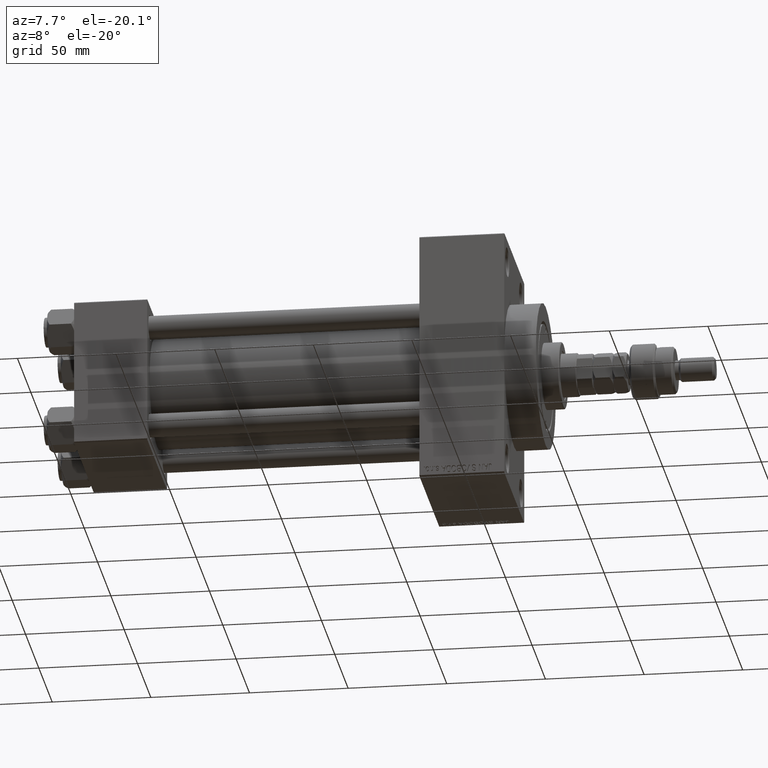
[diagram: clean part render]
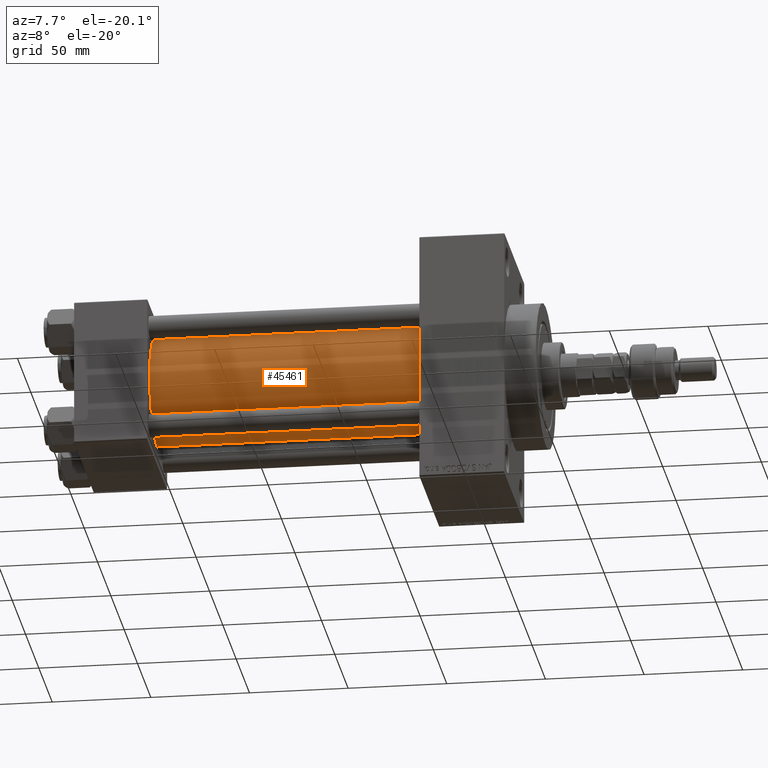
[diagram: same view with one face highlighted and labeled with its STEP entity id]
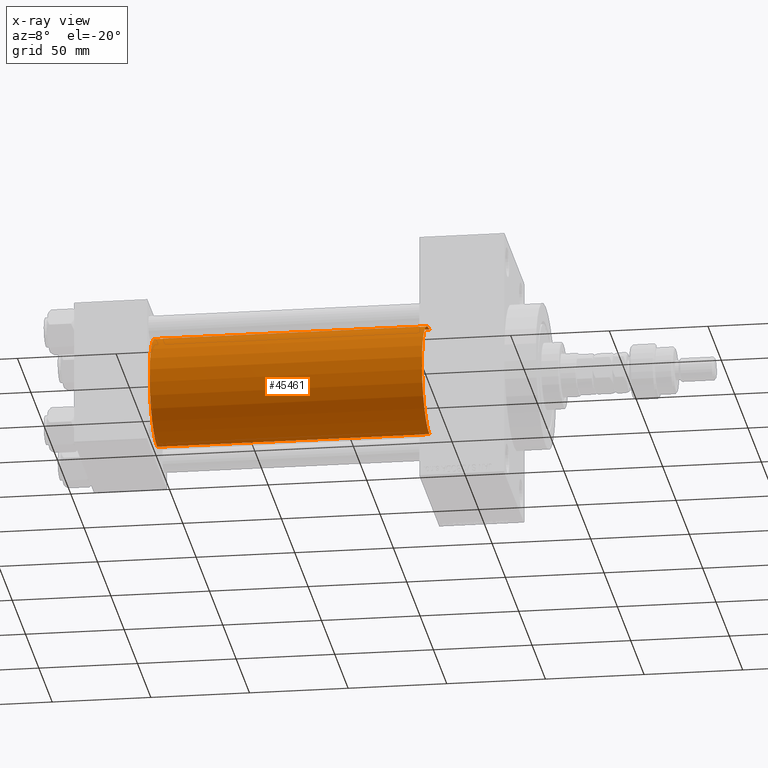
[diagram: x-ray of the same camera — body ghosted, the highlighted face saturated]
A machine part, auxiliary view. The second image highlights one B-rep face of the part: STEP entity #45461.
The next image is the same camera in x-ray: the body ghosted, the highlighted face saturated — about 0% of this face is hidden behind the body in this view.
In plain terms, the highlighted cylindrical surface (partial cylindrical patch) has radius 28 mm, axis along (-1, -0, -0).
Its self-contained STEP definition (entity closure, byte-faithful):
#3620 = EDGE_CURVE ( 'NONE', #38988, #20467, #13954, .T. ) ;
#5522 = FACE_OUTER_BOUND ( 'NONE', #22451, .T. ) ;
#7160 = ORIENTED_EDGE ( 'NONE', *, *, #31096, .F. ) ;
#10127 = VERTEX_POINT ( 'NONE', #47302 ) ;
#11526 = AXIS2_PLACEMENT_3D ( 'NONE', #35578, #39389, #42932 ) ;
#13209 = ORIENTED_EDGE ( 'NONE', *, *, #46237, .T. ) ;
#13612 = VECTOR ( 'NONE', #40563, 1000.000000000000000 ) ;
#13954 = CIRCLE ( 'NONE', #11526, 28.00000000000000000 ) ;
#15992 = DIRECTION ( 'NONE',  ( -1.000000000000000000, -0.000000000000000000, -0.000000000000000000 ) ) ;
#16993 = CYLINDRICAL_SURFACE ( 'NONE', #38135, 28.00000000000000000 ) ;
#17241 = CARTESIAN_POINT ( 'NONE',  ( 175.0000000000000284, -2.602085213965210642E-15, 0.000000000000000000 ) ) ;
#20467 = VERTEX_POINT ( 'NONE', #47346 ) ;
#21052 = DIRECTION ( 'NONE',  ( -1.000000000000000000, -0.000000000000000000, -0.000000000000000000 ) ) ;
#22451 = EDGE_LOOP ( 'NONE', ( #34507, #7160, #13209, #22900 ) ) ;
#22452 = AXIS2_PLACEMENT_3D ( 'NONE', #34527, #37843, #33770 ) ;
#22900 = ORIENTED_EDGE ( 'NONE', *, *, #3620, .T. ) ;
#24697 = EDGE_CURVE ( 'NONE', #43783, #20467, #31971, .T. ) ;
#24859 = CARTESIAN_POINT ( 'NONE',  ( 175.0000000000000284, -2.602085213965210642E-15, 28.00000000000000000 ) ) ;
#24862 = DIRECTION ( 'NONE',  ( 0.000000000000000000, 0.000000000000000000, 1.000000000000000000 ) ) ;
#31096 = EDGE_CURVE ( 'NONE', #10127, #43783, #43509, .T. ) ;
#31971 = LINE ( 'NONE', #40069, #39245 ) ;
#33770 = DIRECTION ( 'NONE',  ( 0.000000000000000000, 0.000000000000000000, -1.000000000000000000 ) ) ;
#34507 = ORIENTED_EDGE ( 'NONE', *, *, #24697, .F. ) ;
#34527 = CARTESIAN_POINT ( 'NONE',  ( 175.0000000000000284, -2.602085213965210642E-15, 0.000000000000000000 ) ) ;
#35578 = CARTESIAN_POINT ( 'NONE',  ( 37.00000000000000711, -2.602085213965210642E-15, 0.000000000000000000 ) ) ;
#37843 = DIRECTION ( 'NONE',  ( 1.000000000000000000, 0.000000000000000000, 0.000000000000000000 ) ) ;
#38135 = AXIS2_PLACEMENT_3D ( 'NONE', #17241, #21052, #24862 ) ;
#38988 = VERTEX_POINT ( 'NONE', #43758 ) ;
#39245 = VECTOR ( 'NONE', #15992, 1000.000000000000000 ) ;
#39389 = DIRECTION ( 'NONE',  ( 1.000000000000000000, -0.000000000000000000, 0.000000000000000000 ) ) ;
#40069 = CARTESIAN_POINT ( 'NONE',  ( 175.0000000000000284, 8.269258236473784371E-16, -28.00000000000000000 ) ) ;
#40316 = LINE ( 'NONE', #24859, #13612 ) ;
#40563 = DIRECTION ( 'NONE',  ( -1.000000000000000000, -0.000000000000000000, -0.000000000000000000 ) ) ;
#42319 = CARTESIAN_POINT ( 'NONE',  ( 175.0000000000000284, 8.269258236473784371E-16, -28.00000000000000000 ) ) ;
#42932 = DIRECTION ( 'NONE',  ( 0.000000000000000000, 0.000000000000000000, 1.000000000000000000 ) ) ;
#43509 = CIRCLE ( 'NONE', #22452, 28.00000000000000000 ) ;
#43758 = CARTESIAN_POINT ( 'NONE',  ( 37.00000000000000711, -2.602085213965210642E-15, 28.00000000000000000 ) ) ;
#43783 = VERTEX_POINT ( 'NONE', #42319 ) ;
#45461 = ADVANCED_FACE ( 'NONE', ( #5522 ), #16993, .T. ) ;
#46237 = EDGE_CURVE ( 'NONE', #10127, #38988, #40316, .T. ) ;
#47302 = CARTESIAN_POINT ( 'NONE',  ( 175.0000000000000284, -2.602085213965210642E-15, 28.00000000000000000 ) ) ;
#47346 = CARTESIAN_POINT ( 'NONE',  ( 37.00000000000000711, 8.269258236473784371E-16, -28.00000000000000000 ) ) ;